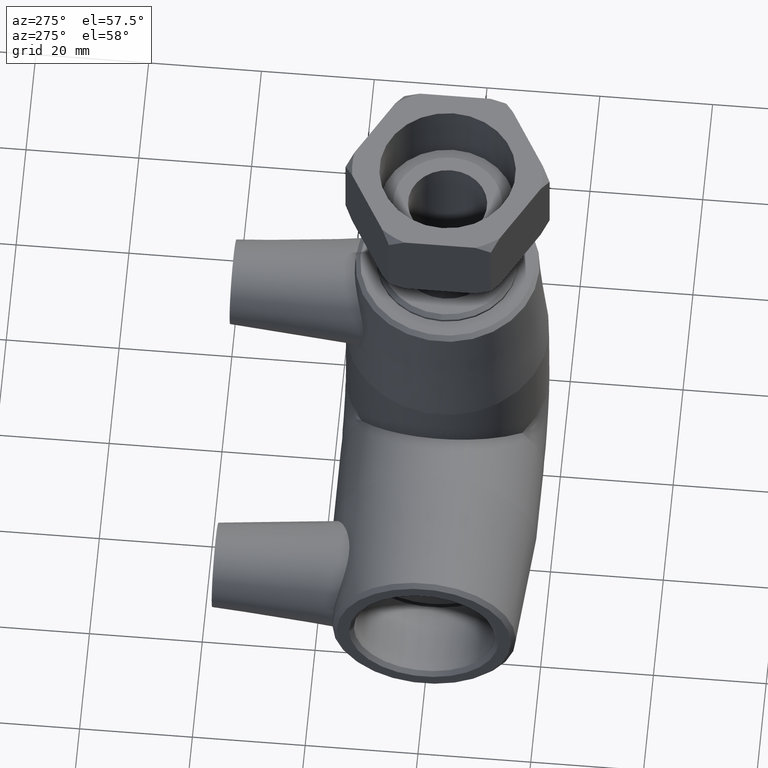
[diagram: clean part render]
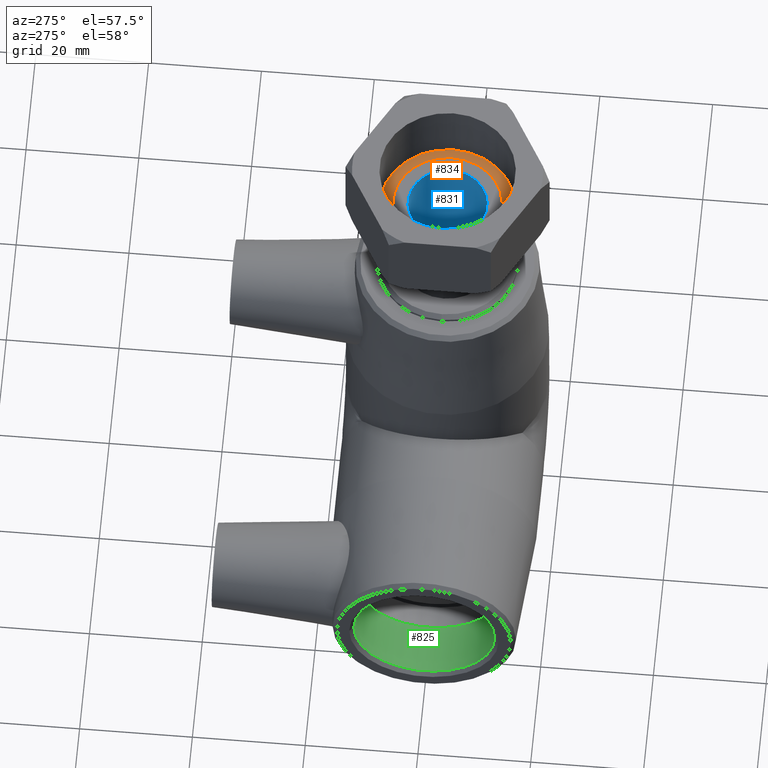
[diagram: same view with three faces highlighted in distinct colors, each labeled with its STEP entity id]
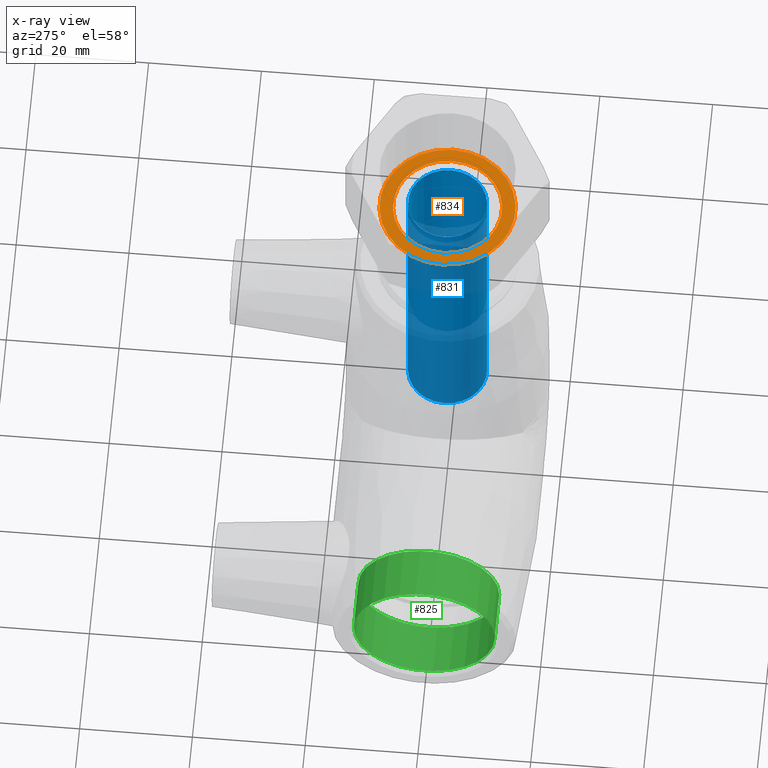
[diagram: x-ray of the same camera — body ghosted, the three highlighted faces saturated]
A machine part, auxiliary view with three faces highlighted in distinct colors.
The next image is the same camera in x-ray (body ghosted, the three faces saturated) — at least one of them is partly hidden behind the body in this view.
Their STEP definitions:

[orange] entity #834 — the highlighted planar face has unit normal (0, 0, 1).
#112=PLANE('',#935);
#144=FACE_BOUND('',#288,.T.);
#203=FACE_OUTER_BOUND('',#287,.T.);
#287=EDGE_LOOP('',(#717));
#288=EDGE_LOOP('',(#718));
#368=CIRCLE('',#934,9.6468);
#369=CIRCLE('',#936,12.0585);
#448=VERTEX_POINT('',#1538);
#449=VERTEX_POINT('',#1541);
#546=EDGE_CURVE('',#448,#448,#368,.T.);
#547=EDGE_CURVE('',#449,#449,#369,.T.);
#717=ORIENTED_EDGE('',*,*,#547,.F.);
#718=ORIENTED_EDGE('',*,*,#546,.T.);
#834=ADVANCED_FACE('',(#203,#144),#112,.T.);
#934=AXIS2_PLACEMENT_3D('',#1539,#1143,#1144);
#935=AXIS2_PLACEMENT_3D('',#1540,#1145,#1146);
#936=AXIS2_PLACEMENT_3D('',#1542,#1147,#1148);
#1143=DIRECTION('center_axis',(-2.77555756156289E-16,0.,-1.));
#1144=DIRECTION('ref_axis',(1.,0.,-2.77555756156289E-16));
#1145=DIRECTION('center_axis',(2.77555756156289E-16,0.,1.));
#1146=DIRECTION('ref_axis',(1.,0.,0.));
#1147=DIRECTION('center_axis',(-2.77555756156289E-16,0.,-1.));
#1148=DIRECTION('ref_axis',(1.,0.,-2.77555756156289E-16));
#1538=CARTESIAN_POINT('',(-9.64679999999998,0.,66.));
#1539=CARTESIAN_POINT('Origin',(1.83186799063151E-14,0.,66.));
#1540=CARTESIAN_POINT('Origin',(-12.0585,0.,66.));
#1541=CARTESIAN_POINT('',(-12.0585,0.,66.));
#1542=CARTESIAN_POINT('Origin',(1.83186799063151E-14,0.,66.));

[blue] entity #831 — the highlighted cylindrical surface (bore or boss wall) has radius 7 mm, axis along (-0, 0, -1).
#87=CYLINDRICAL_SURFACE('',#928,7.);
#141=FACE_BOUND('',#282,.T.);
#200=FACE_OUTER_BOUND('',#281,.T.);
#281=EDGE_LOOP('',(#711));
#282=EDGE_LOOP('',(#712));
#365=CIRCLE('',#929,7.);
#366=CIRCLE('',#930,7.);
#445=VERTEX_POINT('',#1530);
#446=VERTEX_POINT('',#1532);
#543=EDGE_CURVE('',#445,#445,#365,.T.);
#544=EDGE_CURVE('',#446,#446,#366,.T.);
#711=ORIENTED_EDGE('',*,*,#543,.T.);
#712=ORIENTED_EDGE('',*,*,#544,.F.);
#831=ADVANCED_FACE('',(#200,#141),#87,.F.);
#928=AXIS2_PLACEMENT_3D('',#1529,#1131,#1132);
#929=AXIS2_PLACEMENT_3D('',#1531,#1133,#1134);
#930=AXIS2_PLACEMENT_3D('',#1533,#1135,#1136);
#1131=DIRECTION('center_axis',(-2.77555756156289E-16,0.,-1.));
#1132=DIRECTION('ref_axis',(-1.,0.,2.19604502436879E-16));
#1133=DIRECTION('center_axis',(-2.77555756156289E-16,0.,-1.));
#1134=DIRECTION('ref_axis',(1.,0.,-2.77555756156289E-16));
#1135=DIRECTION('center_axis',(-2.77555756156289E-16,0.,-1.));
#1136=DIRECTION('ref_axis',(1.,0.,-2.77555756156289E-16));
#1529=CARTESIAN_POINT('Origin',(1.59872115546023E-14,0.,57.6));
#1530=CARTESIAN_POINT('',(-7.,0.,12.5));
#1531=CARTESIAN_POINT('Origin',(3.46944695195361E-15,0.,12.5));
#1532=CARTESIAN_POINT('',(-6.99999999999998,0.,67.2));
#1533=CARTESIAN_POINT('Origin',(1.86517468137026E-14,0.,67.2));

[green] entity #825 — the highlighted cylindrical surface (bore or boss wall) has radius 12.5 mm, axis along (1, -0, 0).
#86=CYLINDRICAL_SURFACE('',#916,12.5);
#133=FACE_BOUND('',#268,.T.);
#194=FACE_OUTER_BOUND('',#267,.T.);
#267=EDGE_LOOP('',(#697));
#268=EDGE_LOOP('',(#698));
#356=CIRCLE('',#912,12.5);
#359=CIRCLE('',#917,12.5);
#434=VERTEX_POINT('',#1426);
#437=VERTEX_POINT('',#1434);
#532=EDGE_CURVE('',#434,#434,#356,.T.);
#535=EDGE_CURVE('',#437,#437,#359,.T.);
#697=ORIENTED_EDGE('',*,*,#535,.T.);
#698=ORIENTED_EDGE('',*,*,#532,.F.);
#825=ADVANCED_FACE('',(#194,#133),#86,.F.);
#912=AXIS2_PLACEMENT_3D('',#1427,#1099,#1100);
#916=AXIS2_PLACEMENT_3D('',#1433,#1107,#1108);
#917=AXIS2_PLACEMENT_3D('',#1435,#1109,#1110);
#1099=DIRECTION('center_axis',(1.,-2.89120579329468E-18,0.));
#1100=DIRECTION('ref_axis',(0.,-1.,0.));
#1107=DIRECTION('center_axis',(1.,-2.89120579329468E-18,0.));
#1108=DIRECTION('ref_axis',(0.,1.,0.));
#1109=DIRECTION('center_axis',(1.,-2.89120579329468E-18,0.));
#1110=DIRECTION('ref_axis',(0.,0.,-1.));
#1426=CARTESIAN_POINT('',(-47.25,12.5,1.53080849893419E-15));
#1427=CARTESIAN_POINT('Origin',(-47.25,-2.16840434497099E-18,0.));
#1433=CARTESIAN_POINT('Origin',(-43.0666666666667,-1.42632819135871E-17,
0.));
#1434=CARTESIAN_POINT('',(-38.1333333333333,12.5,0.));
#1435=CARTESIAN_POINT('Origin',(-38.1333333333333,-2.85265638271742E-17,
0.));